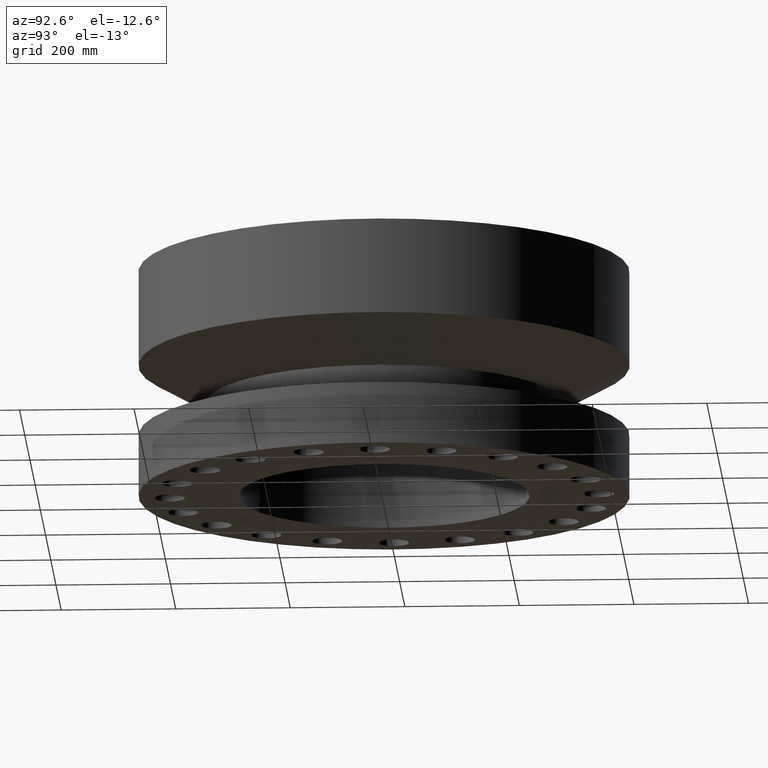
[diagram: clean part render]
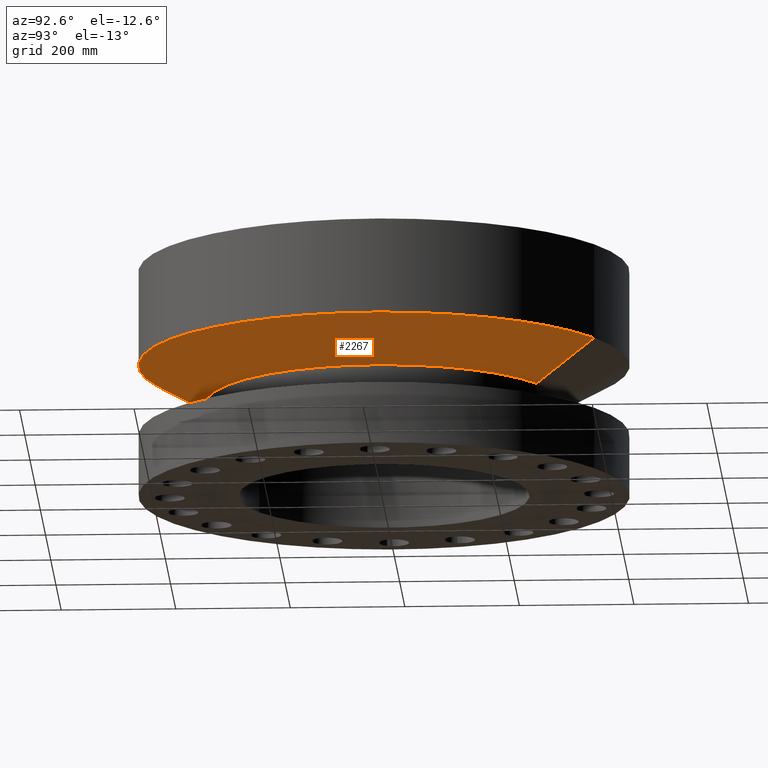
[diagram: same view with one face highlighted and labeled with its STEP entity id]
A machine part, auxiliary view. The second image highlights one B-rep face of the part: STEP entity #2267.
In plain terms, the highlighted conical surface has half-angle 60 deg.
Its self-contained STEP definition (entity closure, byte-faithful):
#1695=AXIS2_PLACEMENT_3D('Circle Axis2P3D',#1693,#1694,$) ;
#2240=AXIS2_PLACEMENT_3D('Cone Axis2P3D',#2237,#2238,#2239) ;
#2251=AXIS2_PLACEMENT_3D('Circle Axis2P3D',#2249,#2250,$) ;
#1690=CARTESIAN_POINT('Vertex',(5.87296284792,10.7503863832,6.50000000003)) ;
#1693=CARTESIAN_POINT('Axis2P3D Location',(0.,0.,6.50000000003)) ;
#1697=CARTESIAN_POINT('Vertex',(-5.87296284792,-10.7503863832,6.50000000003)) ;
#2237=CARTESIAN_POINT('Axis2P3D Location',(0.,0.,6.50000000003)) ;
#2242=CARTESIAN_POINT('Line Origine',(6.98163440595,12.7797960576,7.83512249753)) ;
#2246=CARTESIAN_POINT('Vertex',(8.09030596398,14.809205732,9.17024499504)) ;
#2249=CARTESIAN_POINT('Axis2P3D Location',(0.,0.,9.17024499504)) ;
#2253=CARTESIAN_POINT('Vertex',(-8.09030596398,-14.809205732,9.17024499504)) ;
#2256=CARTESIAN_POINT('Line Origine',(-6.98163440595,-12.7797960576,7.83512249753)) ;
#1694=DIRECTION('Axis2P3D Direction',(0.,0.,-0.0393700787402)) ;
#2238=DIRECTION('Axis2P3D Direction',(-0.,-0.,0.0393700787402)) ;
#2239=DIRECTION('Axis2P3D XDirection',(0.0188750212049,0.0345504945626,0.)) ;
#2243=DIRECTION('Vector Direction',(0.0163462478604,0.0299216060045,0.0196850393701)) ;
#2250=DIRECTION('Axis2P3D Direction',(-0.,0.,0.0393700787402)) ;
#2257=DIRECTION('Vector Direction',(-0.0163462478604,-0.0299216060045,0.0196850393701)) ;
#2244=VECTOR('Line Direction',#2243,0.0393700787402) ;
#2258=VECTOR('Line Direction',#2257,0.0393700787402) ;
#2262=ORIENTED_EDGE('',*,*,#1699,.F.) ;
#2263=ORIENTED_EDGE('',*,*,#2248,.T.) ;
#2264=ORIENTED_EDGE('',*,*,#2255,.T.) ;
#2265=ORIENTED_EDGE('',*,*,#2260,.F.) ;
#2267=ADVANCED_FACE('PartBody',(#2266),#2241,.T.) ;
#1696=CIRCLE('generated circle',#1695,12.25) ;
#2252=CIRCLE('generated circle',#2251,16.8750000001) ;
#2241=CONICAL_SURFACE('Cone',#2240,12.25,1.0471975512) ;
#1699=EDGE_CURVE('',#1691,#1698,#1696,.T.) ;
#2248=EDGE_CURVE('',#1691,#2247,#2245,.T.) ;
#2255=EDGE_CURVE('',#2247,#2254,#2252,.F.) ;
#2260=EDGE_CURVE('',#1698,#2254,#2259,.T.) ;
#2261=EDGE_LOOP('',(#2262,#2263,#2264,#2265)) ;
#2266=FACE_OUTER_BOUND('',#2261,.T.) ;
#2245=LINE('Line',#2242,#2244) ;
#2259=LINE('Line',#2256,#2258) ;
#1691=VERTEX_POINT('',#1690) ;
#1698=VERTEX_POINT('',#1697) ;
#2247=VERTEX_POINT('',#2246) ;
#2254=VERTEX_POINT('',#2253) ;